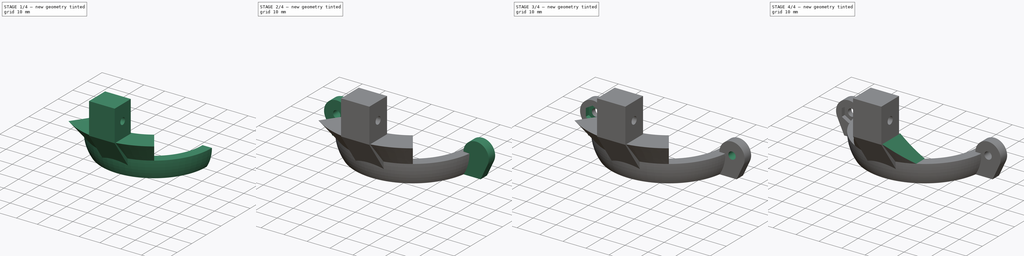
[diagram: build sequence overview — one tinted view per stage of 4, left to right]
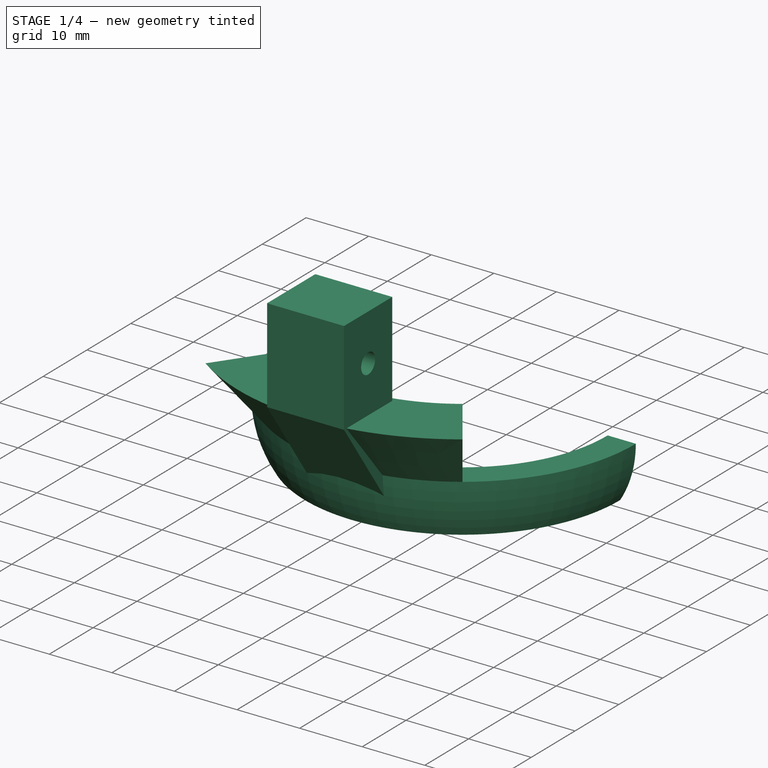
[diagram: stage 1 of 4 — iso view after this stage's code; geometry added in this stage tinted green]
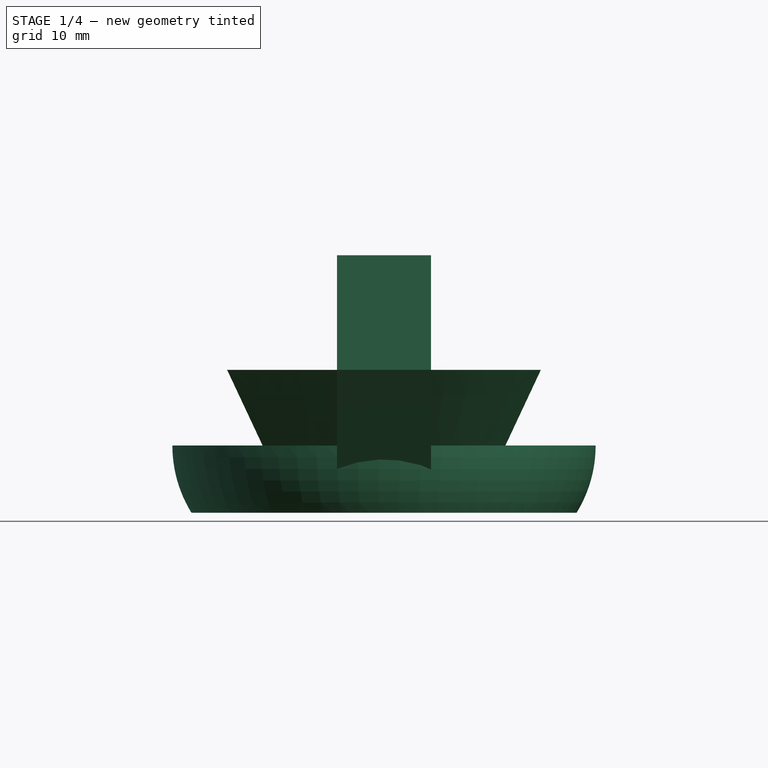
[diagram: stage 1 of 4 — front view after this stage's code; geometry added in this stage tinted green]
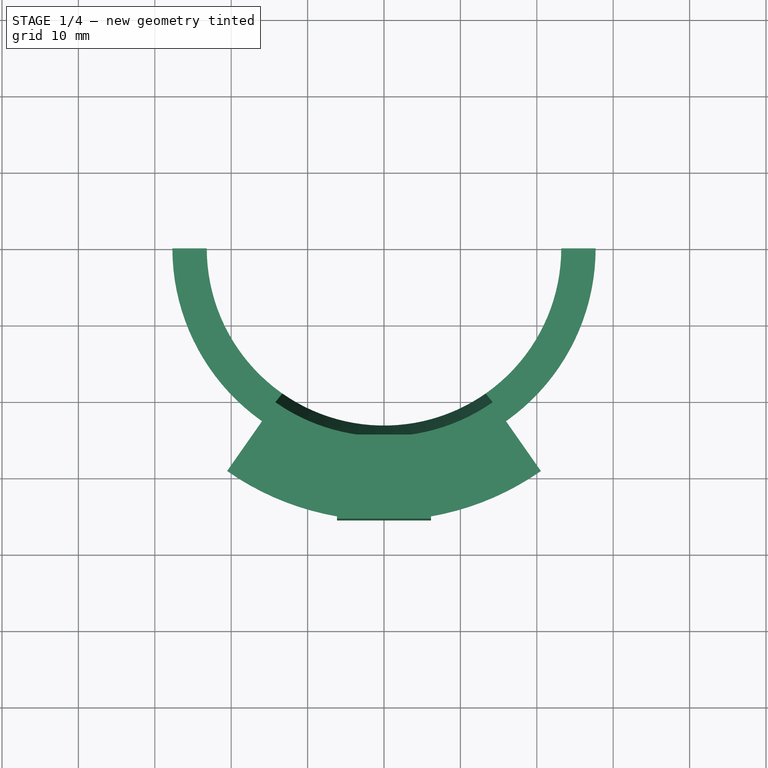
[diagram: stage 1 of 4 — top view after this stage's code; geometry added in this stage tinted green]
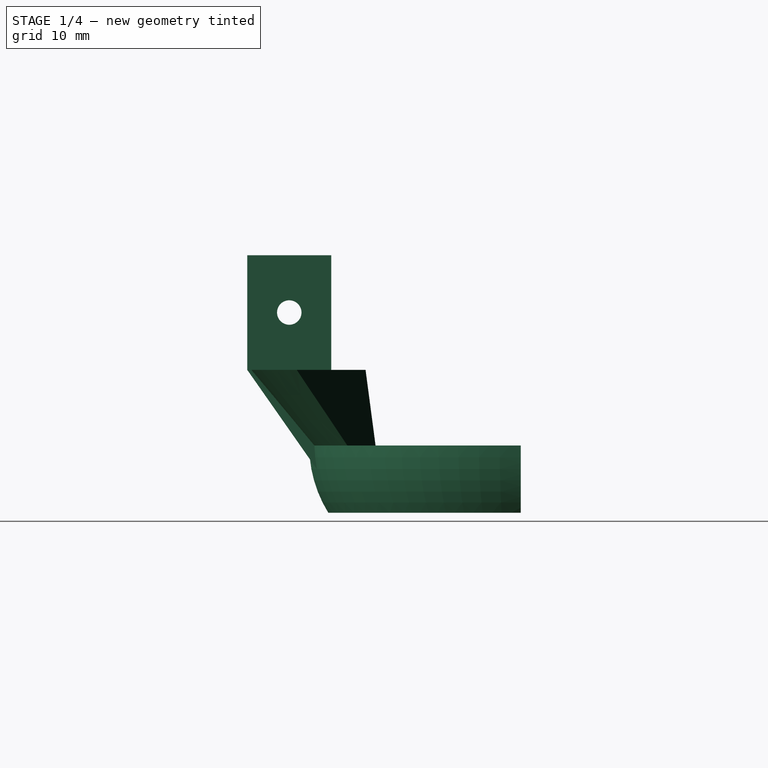
[diagram: stage 1 of 4 — right view after this stage's code; geometry added in this stage tinted green]
FCSTD DOCUMENT  (FreeCAD 0.15R4671 (Git))
Label: LED-ring3
License: All rights reserved
LicenseURL: http://en.wikipedia.org/wiki/All_rights_reserved
objects: Sketcher::SketchObject×8, PartDesign::Pocket×4, PartDesign::Mirrored×3, PartDesign::Revolution×2, PartDesign::Pad×2, Part::MultiFuse×2
note: 29 computed .brp shape members not serialized (recipe doc carries the construction recipe); baked Part::Feature solids carry a one-line shape summary decoded from their .brp

FEATURE [Sketcher::SketchObject] Sketch
  Placement = pos=(0,0,0) rot=(1,0,0;1.5708rad)
  sketch-geometry (8):
    g0: LineSegment StartX=23.2 StartY=0 StartZ=0 EndX=24.8 EndY=0 EndZ=0
    g1: LineSegment StartX=24.8 StartY=0 StartZ=0 EndX=24.8 EndY=-2.8 EndZ=0
    g2: LineSegment StartX=24.8 StartY=-2.8 StartZ=0 EndX=23.2 EndY=-2.8 EndZ=0
    g3: LineSegment StartX=23.2 StartY=-2.8 StartZ=0 EndX=23.2 EndY=-5.8 EndZ=0
    g4: LineSegment StartX=23.2 StartY=-5.8 StartZ=0 EndX=25.2 EndY=-5.8 EndZ=0
    g5: ArcOfCircle CenterX=10.962 CenterY=3 CenterZ=0 NormalX=0 NormalY=0 NormalZ=1 Radius=16.738 StartAngle=5.72959 EndAngle=6.28319
    g6: LineSegment StartX=23.2 StartY=0 StartZ=0 EndX=23.2 EndY=3 EndZ=0
    g7: LineSegment StartX=27.7 StartY=3 StartZ=0 EndX=23.2 EndY=3 EndZ=0
  constraints (25):
    c: Coincident(g0,g1)
    c: Coincident(g1,g2)
    c: Horizontal(g0)
    c: Horizontal(g2)
    c: Vertical(g1)
    c: PointOnObject(g0,g-1)
    c: Equal(g2,g0)
    c: Coincident(g2,g3)
    c: Vertical(g3)
    c: Coincident(g3,g4)
    c: Horizontal(g4)
    c: Coincident(g5,g4)
    c: DistanceX(g-1,g0) = 24.8
    c: DistanceX(g-1,g2) = 23.2
    c: DistanceY(g1) = -2.8
    c: DistanceY(g3) = -3
    c: Coincident(g6,g0)
    c: Vertical(g6)
    c: Equal(g3,g6)
    c: DistanceX(g4) = 2
    c: Coincident(g7,g5)
    c: Coincident(g7,g6)
    c: Horizontal(g7)
    c: Perpendicular(g5,g7)
    c: DistanceX(g7) = -4.5
FEATURE [PartDesign::Revolution] Revolution
  Angle = 180
  Axis = (0,0,1)
  Base = (0,0,0)
  Placement = pos=(0,0,0) rot=(1,0,0;1.5708rad)
  ReferenceAxis = -> Sketch [V_Axis]
  Reversed = true
  Sketch = -> Sketch
FEATURE [Sketcher::SketchObject] Sketch005
  Placement = pos=(0,0,0) rot=(0.57735,0.57735,0.57735;2.0944rad)
  sketch-geometry (8):
    g0: LineSegment StartX=-35.8 StartY=27.9096 StartZ=0 EndX=-24.8 EndY=27.9096 EndZ=0
    g1: LineSegment StartX=-24.8 StartY=27.9096 StartZ=0 EndX=-24.8 EndY=-2.8 EndZ=0
    g2: LineSegment StartX=-35.8 StartY=12.9096 StartZ=0 EndX=-35.8 EndY=27.9096 EndZ=0
    g3: GeomPoint [constr] X=-24.8 Y=-2.8 Z=0
    g4: LineSegment StartX=-35.8 StartY=12.9096 StartZ=0 EndX=-24.8 EndY=-2.8 EndZ=0
    g5: Circle CenterX=-30.3 CenterY=20.4096 CenterZ=0 NormalX=0 NormalY=0 NormalZ=1 Radius=1.6
    g6: LineSegment [constr] StartX=-35.8 StartY=12.9096 StartZ=0 EndX=-30.3 EndY=20.4096 EndZ=0
    g7: LineSegment [constr] StartX=-30.3 StartY=20.4096 StartZ=0 EndX=-24.8 EndY=27.9096 EndZ=0
  constraints (21):
    c: Coincident(g0,g1)
    c: Coincident(g2,g0)
    c: Horizontal(g0)
    c: Vertical(g1)
    c: Vertical(g2)
    c: DistanceX(g-1,g1) = -24.8
    c: DistanceY(g-1,g3) = -2.8
    c: PointOnObject(g3,g1)
    c: DistanceX(g0) = 11
    c: DistanceY(g2) = 15
    c: Coincident(g1,g3)
    c: Coincident(g4,g2)
    c: Coincident(g4,g1)
    c: Angle(g-1,g4) = 2.18166
    c: Radius(g5) = 1.6
    c: Coincident(g2,g6)
    c: Coincident(g6,g5)
    c: Coincident(g6,g7)
    c: Coincident(g7,g0)
    c: Equal(g6,g7)
    c: Parallel(g6,g7)
FEATURE [PartDesign::Pad] Pad001
  Length = 12.3
  Length2 = 100
  Midplane = true
  Placement = pos=(0,0,0) rot=(0.57735,0.57735,0.57735;2.0944rad)
  Sketch = -> Sketch005
  Type = 0
FEATURE [Sketcher::SketchObject] Sketch006
  Placement = pos=(0,0,0) rot=(0.57735,0.57735,0.57735;2.0944rad)
  sketch-geometry (6):
    g0: LineSegment StartX=-23.2 StartY=3 StartZ=0 EndX=-27.7 EndY=3 EndZ=0
    g1: LineSegment StartX=-27.7 StartY=3 StartZ=0 EndX=-35.8 EndY=12.9096 EndZ=0
    g2: LineSegment StartX=-35.8 StartY=12.9096 StartZ=0 EndX=-24.8 EndY=12.9096 EndZ=0
    g3: LineSegment StartX=-24.8 StartY=12.9096 StartZ=0 EndX=-23.2 EndY=3 EndZ=0
    g4: GeomPoint [constr] X=-24.8 Y=-2.8 Z=0
    g5: LineSegment [constr] StartX=-24.8 StartY=-2.8 StartZ=0 EndX=-35.8 EndY=12.9096 EndZ=0
  constraints (16):
    c: Coincident(g0,g1)
    c: Coincident(g1,g2)
    c: Horizontal(g2)
    c: Coincident(g2,g3)
    c: Coincident(g3,g0)
    c: Horizontal(g0)
    c: DistanceX(g-1,g0) = -23.2
    c: DistanceX(g0) = -4.5
    c: DistanceY(g-1,g0) = 3
    c: DistanceX(g-1,g2) = -24.8
    c: DistanceY(g-1,g4) = -2.8
    c: DistanceX(g-1,g4) = -24.8
    c: Coincident(g5,g4)
    c: Angle(g-1,g5) = 2.18166
    c: DistanceX(g5,g2) = 11
    c: Coincident(g1,g5)
FEATURE [PartDesign::Revolution] Revolution001
  Angle = 70
  Axis = (0,0,1)
  Base = (0,0,0)
  Midplane = true
  Placement = pos=(0,0,0) rot=(0.57735,0.57735,0.57735;2.0944rad)
  ReferenceAxis = -> Sketch006 [V_Axis]
  Sketch = -> Sketch006
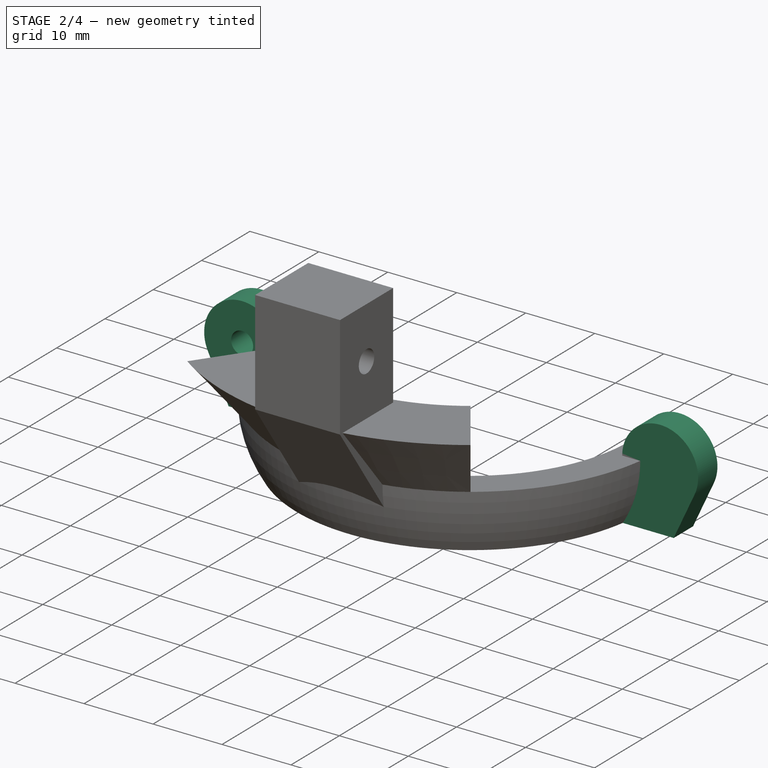
[diagram: stage 2 of 4 — iso view after this stage's code; geometry added in this stage tinted green]
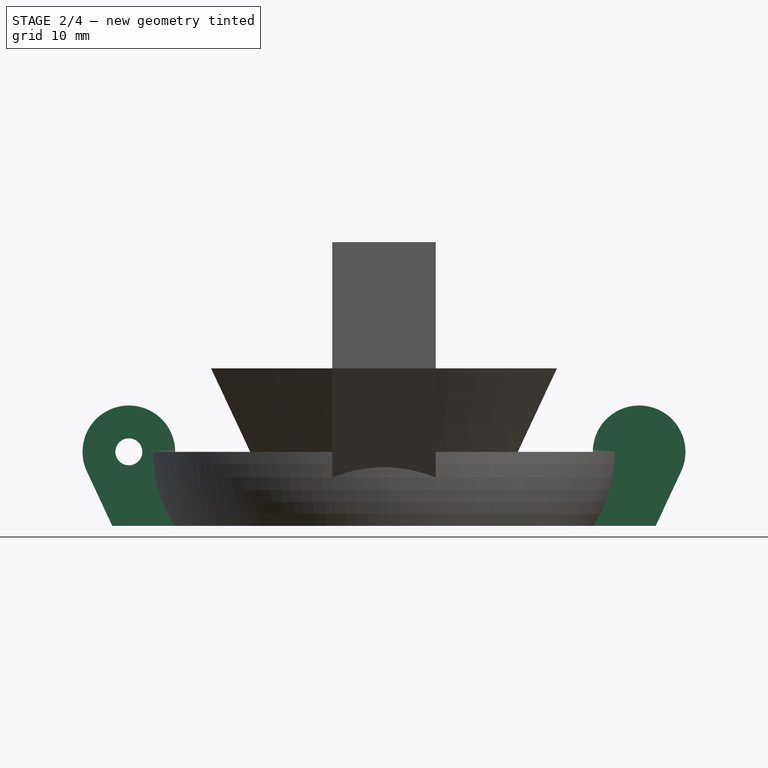
[diagram: stage 2 of 4 — front view after this stage's code; geometry added in this stage tinted green]
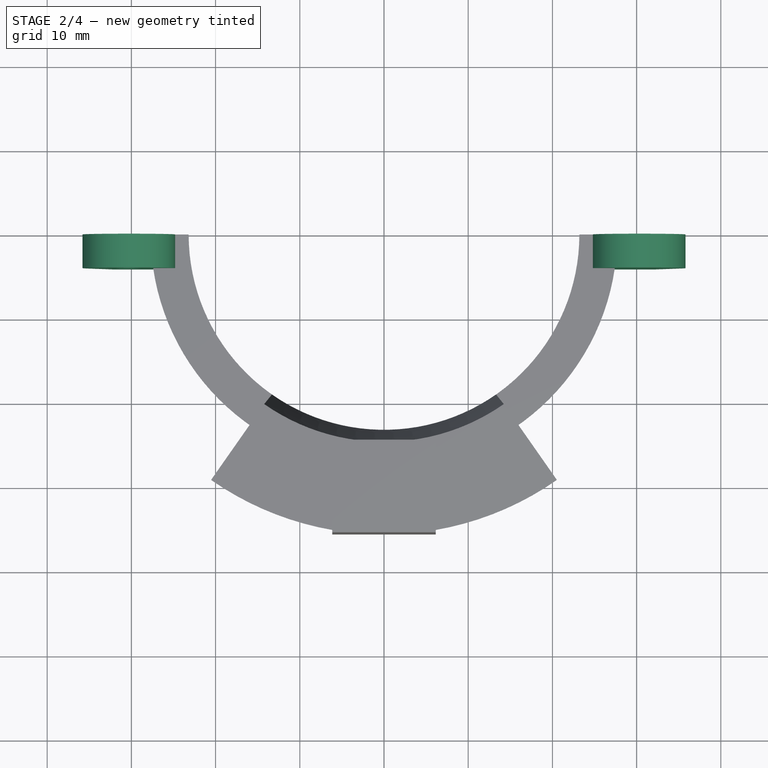
[diagram: stage 2 of 4 — top view after this stage's code; geometry added in this stage tinted green]
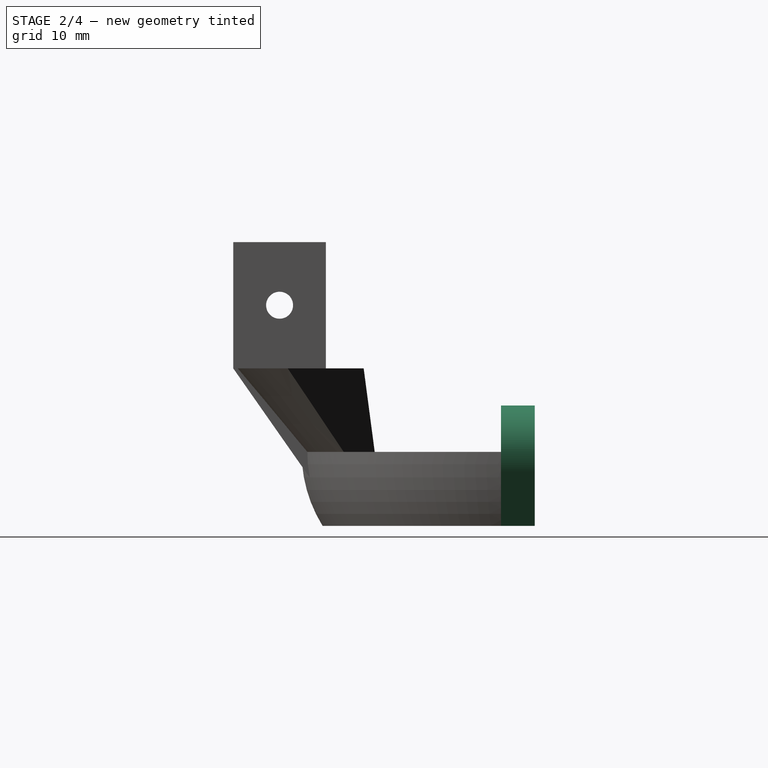
[diagram: stage 2 of 4 — right view after this stage's code; geometry added in this stage tinted green]
FEATURE [Sketcher::SketchObject] Sketch001
  ExternalGeometry = -> [Revolution]
  Placement = pos=(0,0,0) rot=(-1,0,0;1.5708rad)
  Support = -> Revolution [Face9]
  sketch-geometry (5):
    g0: ArcOfCircle CenterX=30.3 CenterY=-3 CenterZ=0 NormalX=0 NormalY=0 NormalZ=1 Radius=5.5 StartAngle=3.14159 EndAngle=6.71951
    g1: GeomPoint [constr] X=24.8 Y=5.8 Z=0
    g2: LineSegment StartX=24.8 StartY=-3 StartZ=0 EndX=24.8 EndY=5.8 EndZ=0
    g3: LineSegment StartX=24.8 StartY=5.8 StartZ=0 EndX=32.2651 EndY=5.8 EndZ=0
    g4: LineSegment StartX=32.2651 StartY=5.8 StartZ=0 EndX=35.2847 EndY=-0.67562 EndZ=0
  constraints (14):
    c: Radius(g0) = 5.5
    c: PointOnObject(g0,g-4)
    c: PointOnObject(g0,g-3)
    c: Tangent(g0,g-4)
    c: PointOnObject(g1,g-5)
    c: PointOnObject(g1,g-4)
    c: Coincident(g2,g0)
    c: Coincident(g2,g1)
    c: Coincident(g3,g1)
    c: Horizontal(g3)
    c: Coincident(g4,g3)
    c: Coincident(g4,g0)
    c: Tangent(g4,g0)
    c: Angle(g-1,g4) = 2.00713
FEATURE [PartDesign::Pad] Pad
  Length = 4
  Length2 = 100
  Placement = pos=(0,0,0) rot=(1,0,0;1.5708rad)
  Reversed = true
  Sketch = -> Sketch001
  Type = 0
FEATURE [PartDesign::Mirrored] Mirrored
  MirrorPlane = -> Sketch001 [V_Axis]
  Originals = -> [Pad]
  Placement = pos=(0,0,0) rot=(1,0,0;1.5708rad)
FEATURE [Sketcher::SketchObject] Sketch002
  ExternalGeometry = -> [Mirrored]
  Placement = pos=(0,0,0) rot=(-1,0,0;1.5708rad)
  Support = -> Mirrored [Face15]
  sketch-geometry (1):
    g0: Circle CenterX=-30.3 CenterY=-3 CenterZ=0 NormalX=0 NormalY=0 NormalZ=1 Radius=1.6
  constraints (2):
    c: Coincident(g0,g-3)
    c: Radius(g0) = 1.6
FEATURE [PartDesign::Pocket] Pocket
  Length = 5
  Placement = pos=(0,0,0) rot=(1,0,0;1.5708rad)
  Sketch = -> Sketch002
  Type = 0
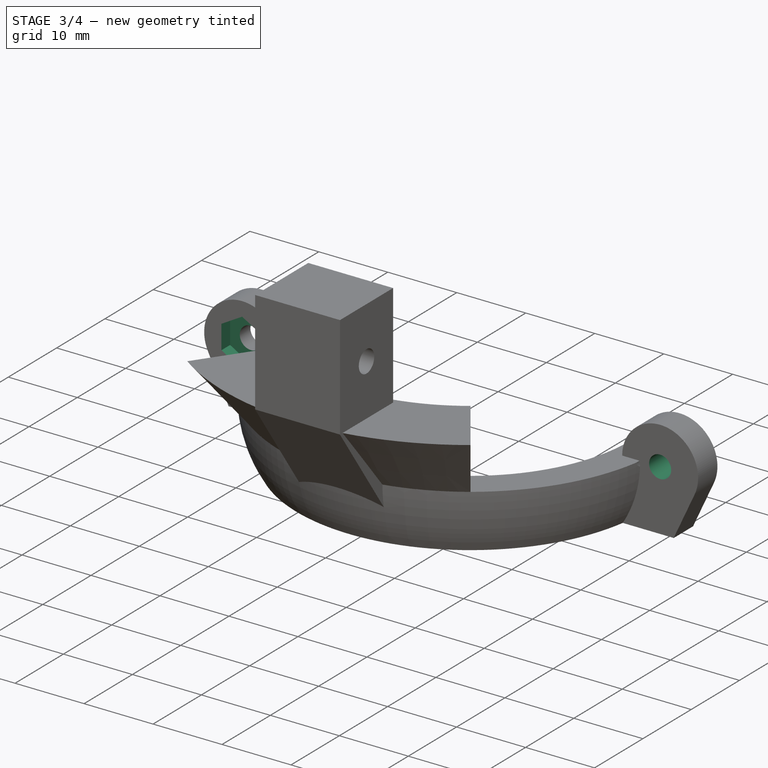
[diagram: stage 3 of 4 — iso view after this stage's code; geometry added in this stage tinted green]
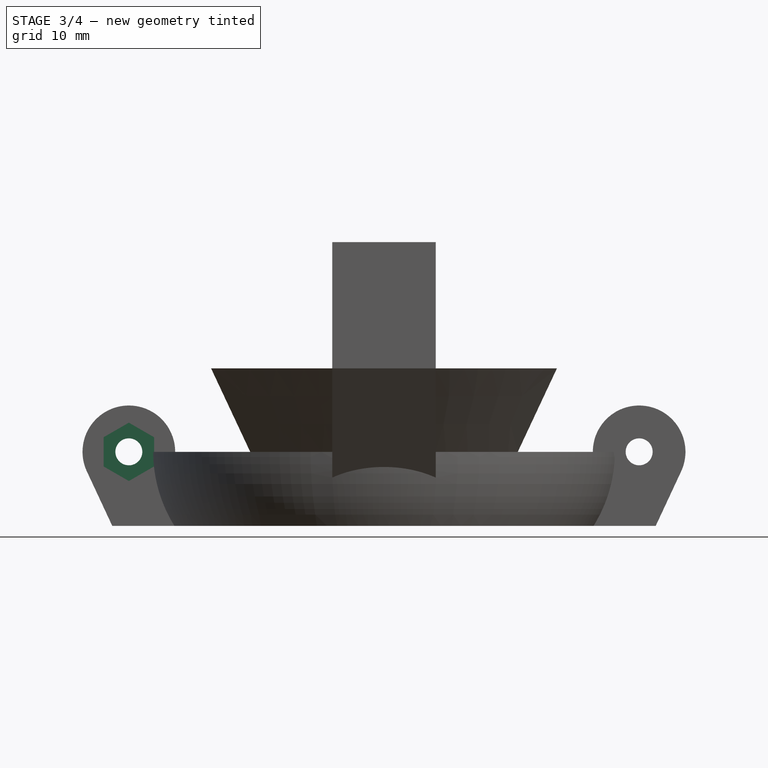
[diagram: stage 3 of 4 — front view after this stage's code; geometry added in this stage tinted green]
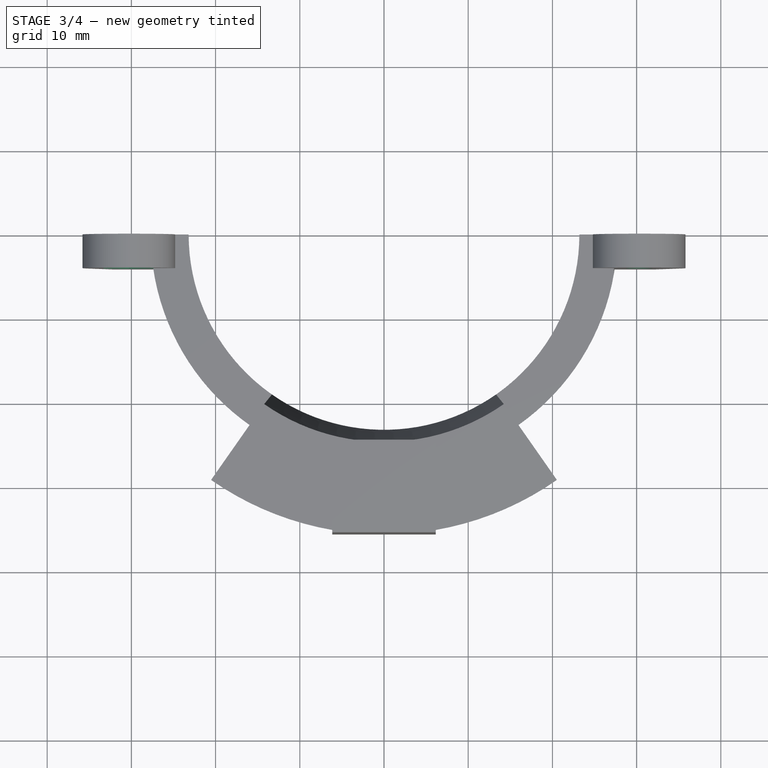
[diagram: stage 3 of 4 — top view after this stage's code; geometry added in this stage tinted green]
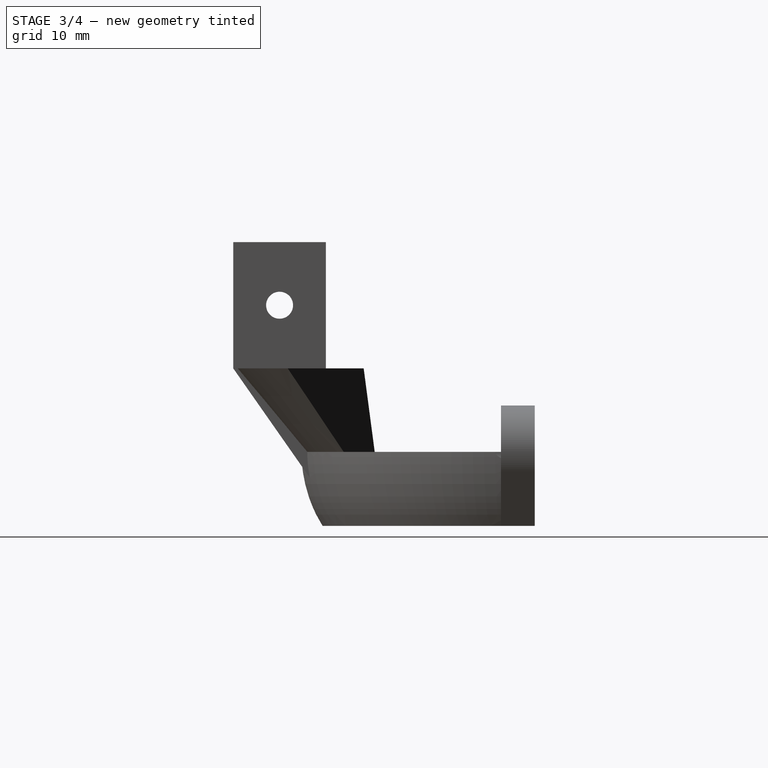
[diagram: stage 3 of 4 — right view after this stage's code; geometry added in this stage tinted green]
FEATURE [PartDesign::Mirrored] Mirrored001
  MirrorPlane = -> Sketch002 [V_Axis]
  Originals = -> [Pocket]
  Placement = pos=(0,0,0) rot=(1,0,0;1.5708rad)
FEATURE [Sketcher::SketchObject] Sketch003
  ExternalGeometry = -> [Mirrored001]
  Placement = pos=(0,-4,0) rot=(1,0,0;1.5708rad)
  Support = -> Mirrored001 [Face13]
  sketch-geometry (7):
    g0: LineSegment StartX=-30.3 StartY=6.4641 StartZ=0 EndX=-33.3 EndY=4.73205 EndZ=0
    g1: LineSegment StartX=-33.3 StartY=4.73205 StartZ=0 EndX=-33.3 EndY=1.26795 EndZ=0
    g2: LineSegment StartX=-33.3 StartY=1.26795 StartZ=0 EndX=-30.3 EndY=-0.464102 EndZ=0
    g3: LineSegment StartX=-30.3 StartY=-0.464102 StartZ=0 EndX=-27.3 EndY=1.26795 EndZ=0
    g4: LineSegment StartX=-27.3 StartY=1.26795 StartZ=0 EndX=-27.3 EndY=4.73205 EndZ=0
    g5: LineSegment StartX=-27.3 StartY=4.73205 StartZ=0 EndX=-30.3 EndY=6.4641 EndZ=0
    g6: Circle [constr] CenterX=-30.3 CenterY=3 CenterZ=0 NormalX=0 NormalY=0 NormalZ=1 Radius=3.4641
  constraints (17):
    c: Coincident(g0,g1)
    c: Coincident(g1,g2)
    c: Coincident(g2,g3)
    c: Coincident(g3,g4)
    c: Coincident(g4,g5)
    c: Coincident(g5,g0)
    c: Equal(g0, g1-g5) x5
    c: PointOnObject(g0,g6)
    c: PointOnObject(g1,g6)
    c: PointOnObject(g2,g6)
    c: PointOnObject(g3,g6)
    c: PointOnObject(g4,g6)
    c: PointOnObject(g5,g6)
    c: Coincident(g3,g-3)
    c: Vertical(g4)
    c: DistanceX(g0,g4) = 6
    c: Coincident(g6,g-3)
FEATURE [PartDesign::Pocket] Pocket001
  Length = 1.8
  Placement = pos=(0,0,0) rot=(1,0,0;1.5708rad)
  Sketch = -> Sketch003
  Type = 0
FEATURE [Sketcher::SketchObject] Sketch004
  ExternalGeometry = -> [Pocket001]
  Placement = pos=(0,-4,0) rot=(1,0,0;1.5708rad)
  Support = -> Pocket001 [Face10]
  sketch-geometry (1):
    g0: Circle CenterX=30.3 CenterY=3 CenterZ=0 NormalX=0 NormalY=0 NormalZ=1 Radius=3
  constraints (2):
    c: Coincident(g0,g-3)
    c: Radius(g0) = 3
FEATURE [PartDesign::Pocket] Pocket002  label="symmetric-part"
  Length = 2
  Placement = pos=(0,0,0) rot=(1,0,0;1.5708rad)
  Reversed = true
  Sketch = -> Sketch004
  Type = 0
FEATURE [Part::MultiFuse] Fusion  label="rect"
  Shapes = -> [Pocket002,Pad001]
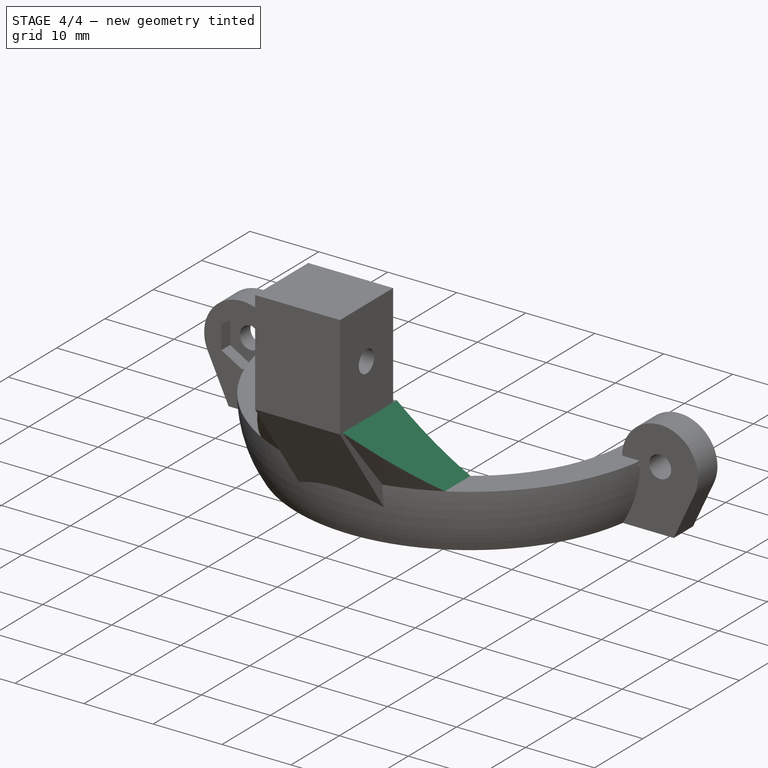
[diagram: stage 4 of 4 — iso view after this stage's code; geometry added in this stage tinted green]
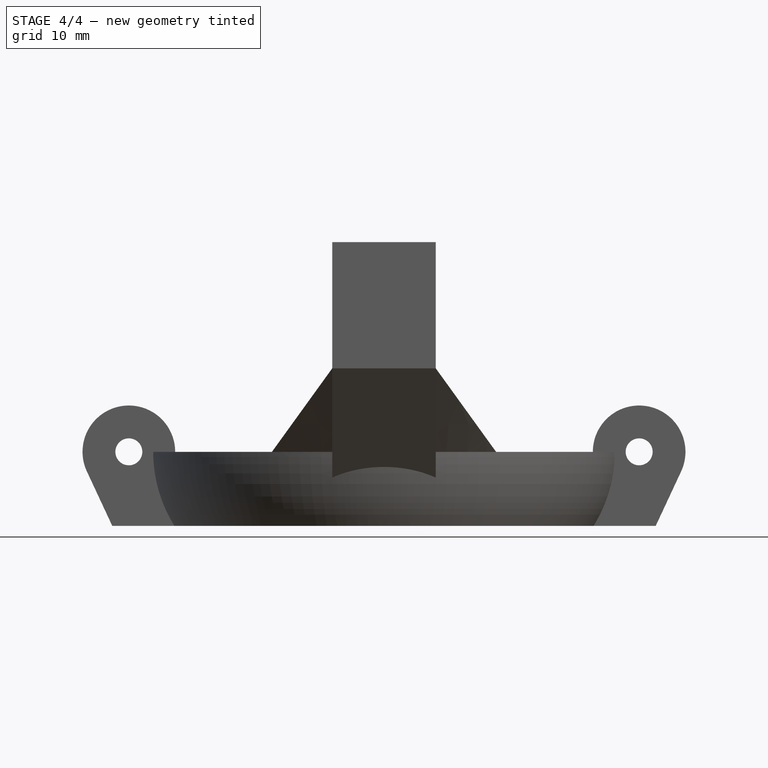
[diagram: stage 4 of 4 — front view after this stage's code; geometry added in this stage tinted green]
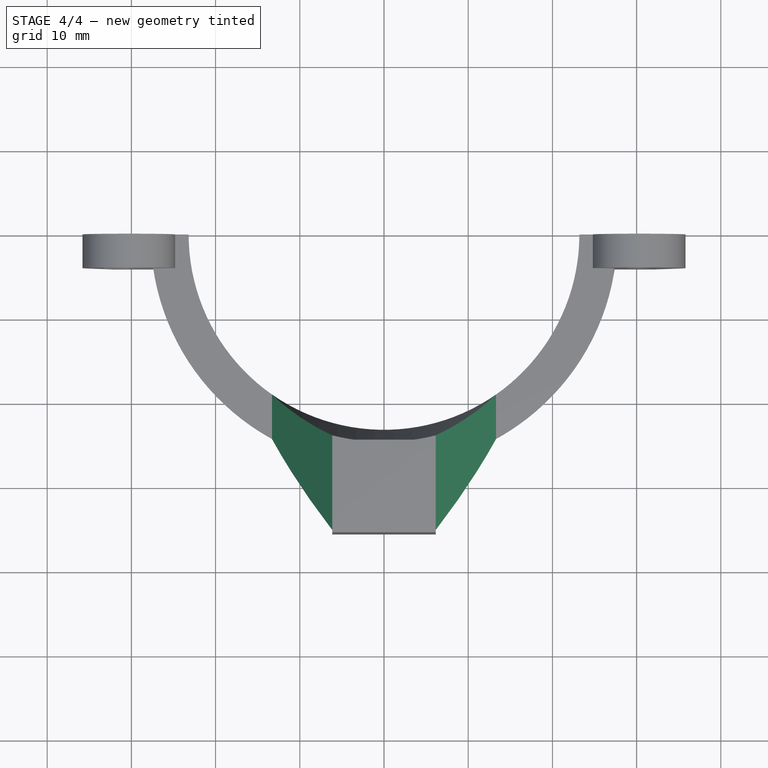
[diagram: stage 4 of 4 — top view after this stage's code; geometry added in this stage tinted green]
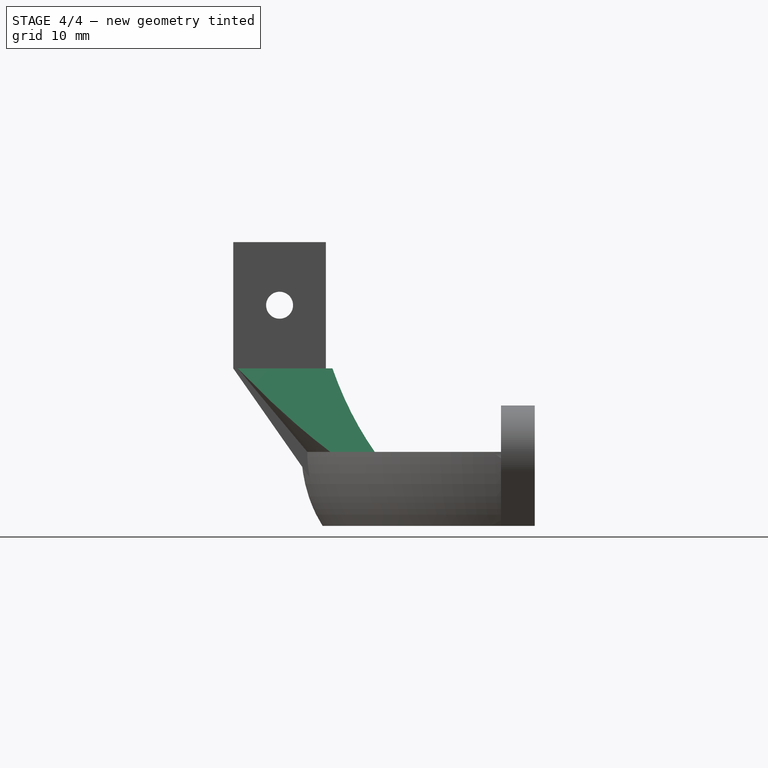
[diagram: stage 4 of 4 — right view after this stage's code; geometry added in this stage tinted green]
FEATURE [Part::MultiFuse] Fusion001
  Shapes = -> [Revolution001,Fusion]
FEATURE [Sketcher::SketchObject] Sketch007
  ExternalGeometry = -> [Fusion001]
  Placement = pos=(0,-24.8,0) rot=(0,0.707107,0.707107;3.14159rad)
  Support = -> Fusion001 [Face49]
  sketch-geometry (4):
    g0: LineSegment StartX=-15.8881 StartY=3 StartZ=0 EndX=-13.307 EndY=3 EndZ=0
    g1: LineSegment StartX=-13.307 StartY=3 StartZ=0 EndX=-6.15 EndY=12.9096 EndZ=0
    g2: LineSegment StartX=-6.15 StartY=12.9096 StartZ=0 EndX=-29.1133 EndY=25.7358 EndZ=0
    g3: LineSegment StartX=-29.1133 StartY=25.7358 StartZ=0 EndX=-15.8881 EndY=3 EndZ=0
  constraints (9):
    c: Coincident(g-5,g0)
    c: Coincident(g0,g-4)
    c: Coincident(g0,g1)
    c: Coincident(g1,g-3)
    c: Coincident(g1,g2)
    c: Coincident(g2,g3)
    c: Coincident(g3,g0)
    c: Equal(g3,g2)
    c: Distance(g-5,g2) = 15.431
FEATURE [PartDesign::Pocket] Pocket003
  Length = 5
  Midplane = true
  Sketch = -> Sketch007
  Type = 1
FEATURE [PartDesign::Mirrored] Mirrored002  label="mount-part"
  MirrorPlane = -> Sketch007 [V_Axis]
  Originals = -> [Pocket003]
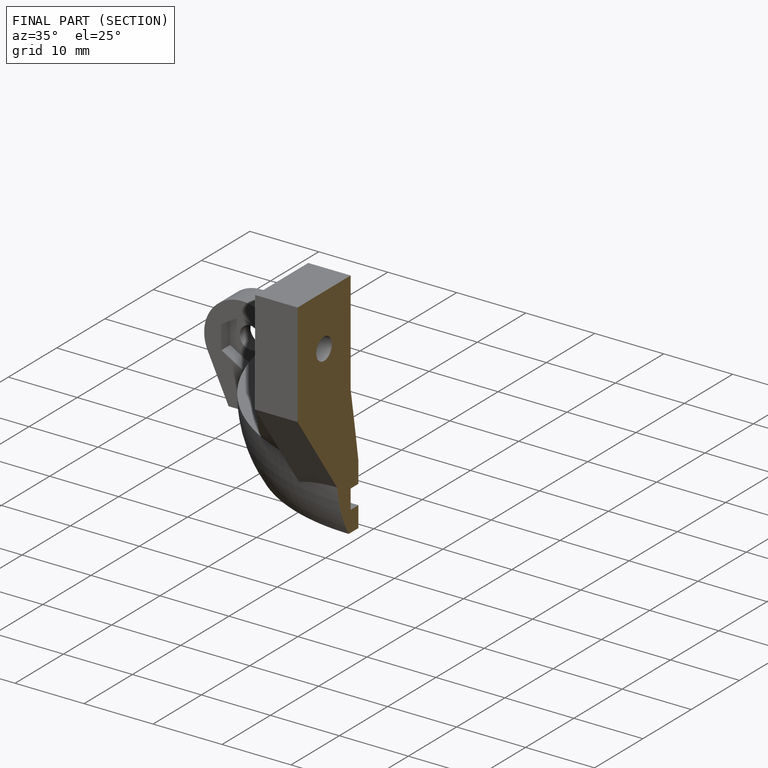
[diagram: finished part — half-section view (interior)]
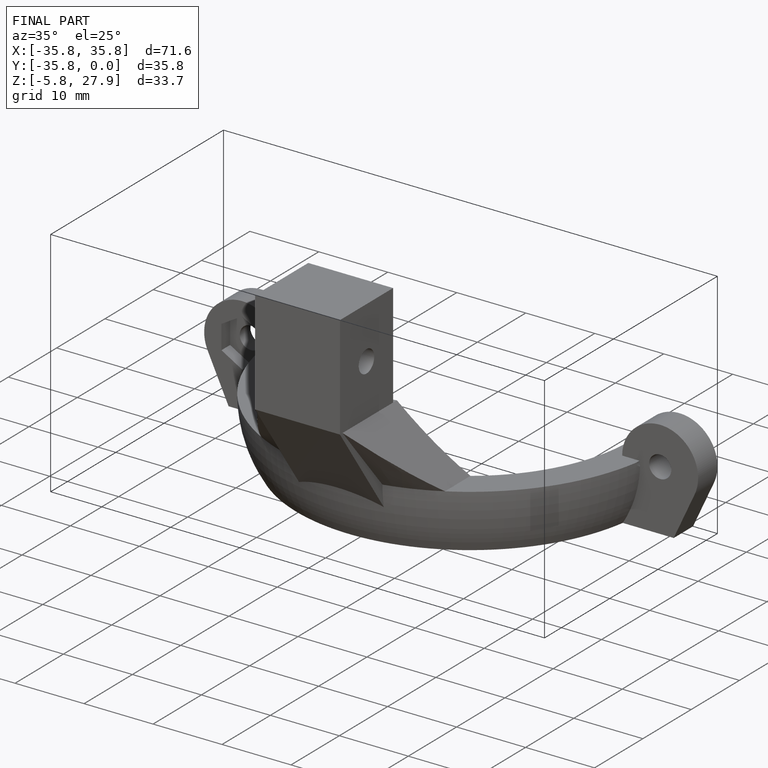
[diagram: finished part — iso view with bounding-box wireframe]
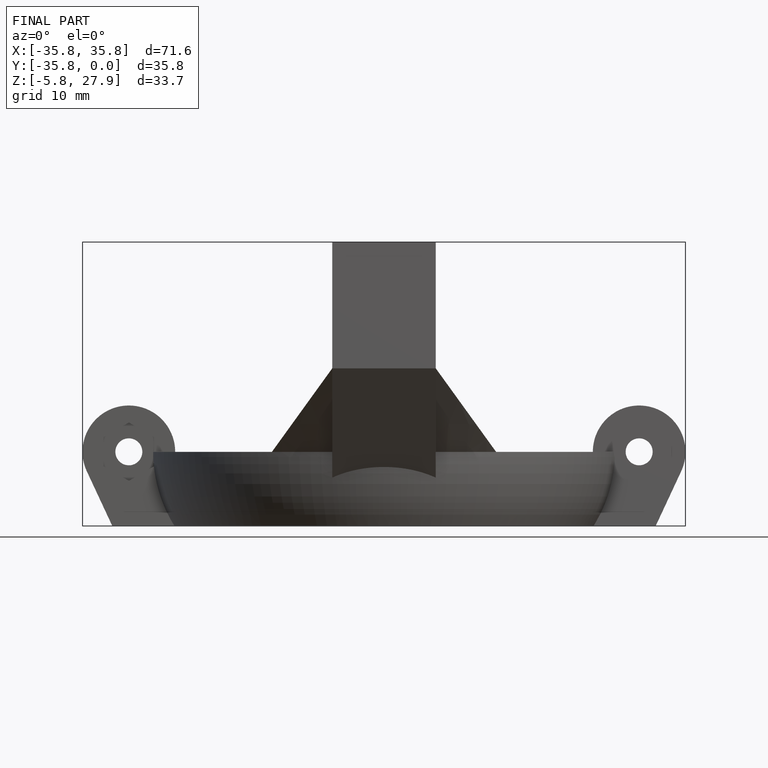
[diagram: finished part — front view with bounding-box wireframe]
